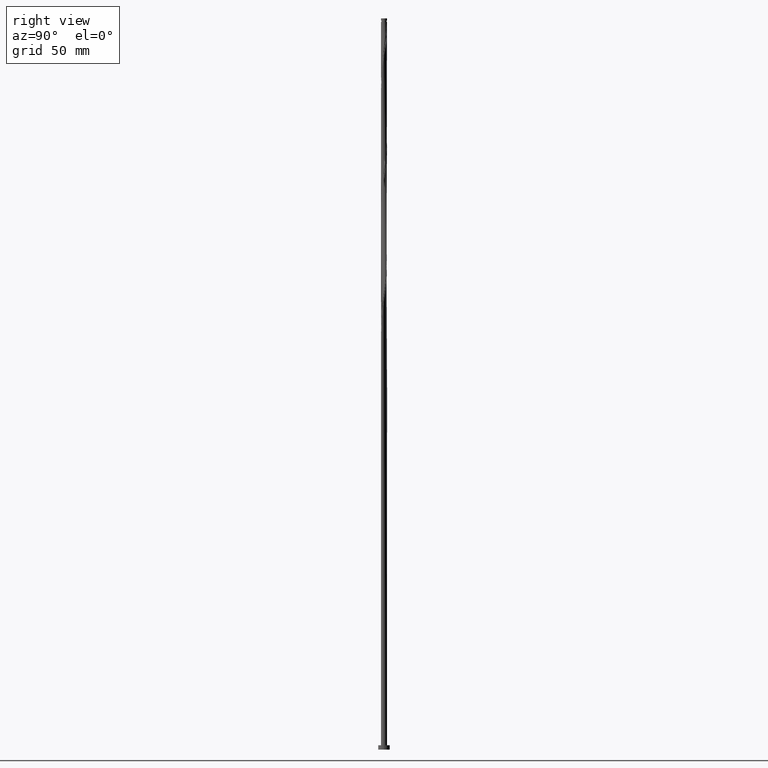
[diagram: clean part render]
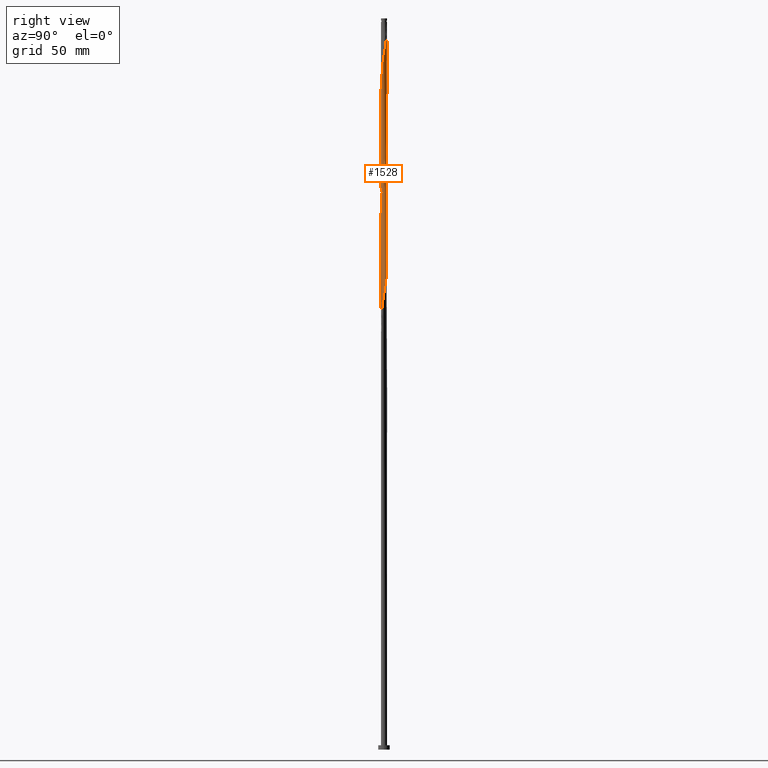
[diagram: same view with one face highlighted and labeled with its STEP entity id]
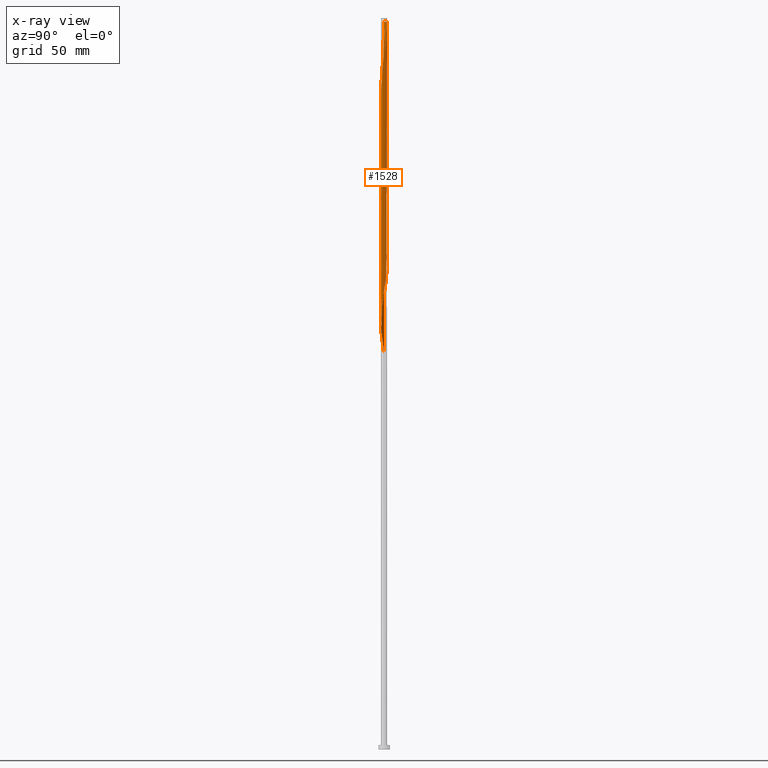
[diagram: x-ray of the same camera — body ghosted, the highlighted face saturated]
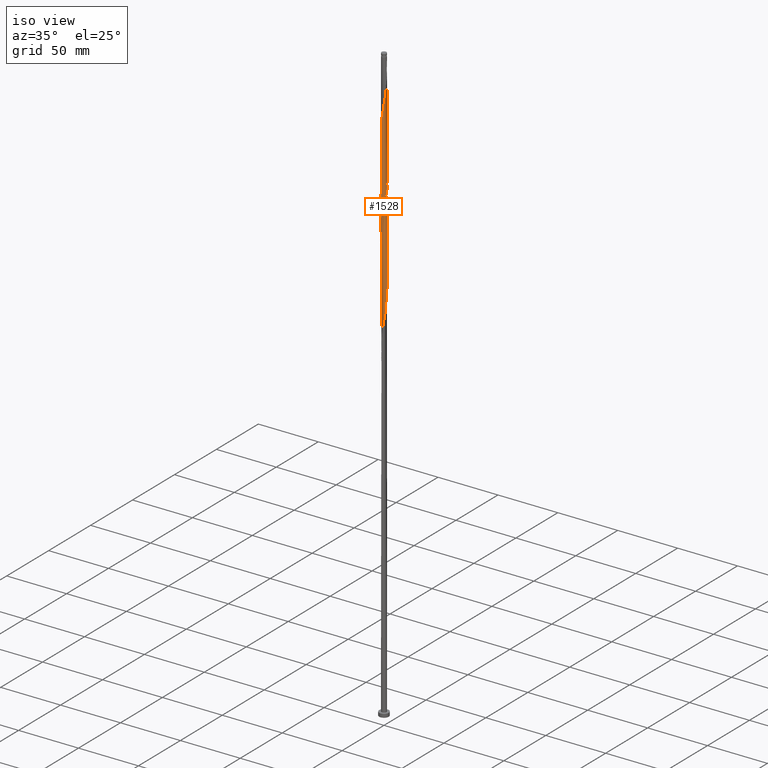
[diagram: same view with one face highlighted and labeled with its STEP entity id]
A machine part, right view. The second image highlights one B-rep face of the part: STEP entity #1528.
The next image is the same camera in x-ray: the body ghosted, the highlighted face saturated — about 0% of this face is hidden behind the body in this view.
A second angle (iso view) of the same face is appended — the face is thin or edge-on in the first view.
In plain terms, the highlighted cylindrical surface (bore or boss wall) has radius 2.1 mm, axis along (-0, -0, -1).
Its self-contained STEP definition (entity closure, byte-faithful):
#5 = CARTESIAN_POINT ( 'NONE',  ( 1.345162050318778002, -1.625828561903962965, 462.4445438297098008 ) ) ;
#12 = CARTESIAN_POINT ( 'NONE',  ( 0.7958967757520214459, 1.943334331078301336, 489.7882938297098008 ) ) ;
#17 =( BOUNDED_CURVE ( )  B_SPLINE_CURVE ( 2, ( #924, #286, #1958, #1357, #1648, #132, #1216, #740, #267, #914, #1486, #1509, #767, #1224, #1818, #455, #734, #569, #639, #1562, #1700, #171, #1234, #1540, #1384, #5, #189, #817, #1530, #942, #1827, #795, #180, #1260, #1848, #1393, #1416, #1082, #775, #620, #316, #1267, #1858, #663, #962, #785, #12, #630, #1103, #1113, #482, #1868, #150 ),
 .UNSPECIFIED., .F., .T. ) 
 B_SPLINE_CURVE_WITH_KNOTS ( ( 3, 2, 2, 2, 2, 2, 2, 2, 2, 2, 2, 2, 2, 2, 2, 2, 2, 2, 2, 2, 2, 2, 2, 2, 2, 2, 3 ),
 ( 0.5545286902180870392, 0.5546875000000000000, 0.5625000000000000000, 0.5703125000000000000, 0.5781250000000000000, 0.5859375000000000000, 0.5937500000000000000, 0.6015625000000000000, 0.6093750000000000000, 0.6171875000000000000, 0.6250000000000000000, 0.6328125000000000000, 0.6406250000000000000, 0.6484375000000000000, 0.6562500000000000000, 0.6640625000000000000, 0.6718750000000000000, 0.6796875000000000000, 0.6875000000000000000, 0.6953125000000000000, 0.7031250000000000000, 0.7109375000000000000, 0.7187500000000000000, 0.7265625000000000000, 0.7343750000000000000, 0.7421875000000000000, 0.7500000000000000000 ),
 .UNSPECIFIED. ) 
 CURVE ( )  GEOMETRIC_REPRESENTATION_ITEM ( )  RATIONAL_B_SPLINE_CURVE ( ( 0.9089165573360121764, 0.9090019243629170465, 0.9090909090910088697, 0.9047133878839146437, 0.9090909090910088697, 0.9047133878839146437, 0.9090909090910088697, 0.9047133878839146437, 0.9090909090910088697, 0.9047133878839146437, 0.9090909090910088697, 0.9047133878839146437, 0.9090909090910088697, 0.9047133878839146437, 0.9090909090910088697, 0.9047133878839146437, 0.9090909090910088697, 0.9047133878839146437, 0.9090909090910088697, 0.9047133878839146437, 0.9090909090910088697, 0.9047133878839146437, 0.9090909090910088697, 0.9047133878839146437, 0.9090909090910088697, 0.9047133878839146437, 0.9090909090910088697, 0.9047133878839146437, 0.9090909090910088697, 0.9047133878839146437, 0.9090909090910088697, 0.9047133878839146437, 0.9090909090910088697, 0.9047133878839146437, 0.9090909090910088697, 0.9047133878839146437, 0.9090909090910088697, 0.9047133878839146437, 0.9090909090910088697, 0.9047133878839146437, 0.9090909090910088697, 0.9047133878839146437, 0.9090909090910088697, 0.9047133878839146437, 0.9090909090910088697, 0.9047133878839146437, 0.9090909090910088697, 0.9047133878839146437, 0.9090909090910088697, 0.9047133878839146437, 0.9090909090910088697, 0.9047133878839146437, 0.9090909090910088697 ) ) 
 REPRESENTATION_ITEM ( '' )  );
#21 = EDGE_CURVE ( 'NONE', #486, #346, #380, .T. ) ;
#25 = CARTESIAN_POINT ( 'NONE',  ( 1.741422690719540256, -1.173646885671800089, 388.2257938297097439 ) ) ;
#32 = CARTESIAN_POINT ( 'NONE',  ( -0.7958967757520200026, 1.943334331078298449, 422.0799604963764295 ) ) ;
#38 = CIRCLE ( 'NONE', #1178, 2.099999999999951683 ) ;
#43 = CARTESIAN_POINT ( 'NONE',  ( -2.100000000000000089, 0.000000000000000000, 500.0000000000000000 ) ) ;
#44 = CARTESIAN_POINT ( 'NONE',  ( -0.6044950502919623769, 2.021723321449557353, 420.7778771630430015 ) ) ;
#45 = CARTESIAN_POINT ( 'NONE',  ( -2.100000000000000089, 0.004184572085943143345, 437.7313039198560318 ) ) ;
#47 = CARTESIAN_POINT ( 'NONE',  ( -0.2151994154757415068, -2.099159037781418657, 373.9028771630431152 ) ) ;
#48 = CARTESIAN_POINT ( 'NONE',  ( -2.100000000000000089, -1.136936264731537591E-15, 437.7576574743733318 ) ) ;
#60 = CARTESIAN_POINT ( 'NONE',  ( -2.099159037781418657, 0.2151994154757413402, 353.0695438297098008 ) ) ;
#69 = CARTESIAN_POINT ( 'NONE',  ( 2.061265465096912664, 0.4014781219429098269, 315.3091271630429446 ) ) ;
#80 = CARTESIAN_POINT ( 'NONE',  ( -1.478994593158975634, 1.490830303356661668, 343.9549604963764864 ) ) ;
#92 = CARTESIAN_POINT ( 'NONE',  ( -1.636498556394547554, -1.332160624413991190, 363.4862104963764864 ) ) ;
#101 = CARTESIAN_POINT ( 'NONE',  ( -1.936928890876850495, 0.8113608763593262996, 432.4966271630431720 ) ) ;
#111 = CARTESIAN_POINT ( 'NONE',  ( -2.099999999999951683, 0.000000000000000000, 497.6007938297097439 ) ) ;
#113 = ORIENTED_EDGE ( 'NONE', *, *, #1845, .F. ) ;
#132 = CARTESIAN_POINT ( 'NONE',  ( -2.016840962218582778, -0.6205900316938298689, 436.4028771630430583 ) ) ;
#138 = CARTESIAN_POINT ( 'NONE',  ( -1.943334331078298893, -0.7958967757520195585, 276.2466271630430015 ) ) ;
#150 = CARTESIAN_POINT ( 'NONE',  ( -0.4178947235848295971, 2.058000000000531848, 497.6007938297096871 ) ) ;
#161 = CARTESIAN_POINT ( 'NONE',  ( -0.008369110940942243310, -2.099983323262843538, 375.2049604963764295 ) ) ;
#171 = CARTESIAN_POINT ( 'NONE',  ( 0.6205900316938298689, -2.016840962218582778, 457.2362104963764295 ) ) ;
#180 = CARTESIAN_POINT ( 'NONE',  ( 2.061265465096916216, -0.4014781219429117143, 471.5591271630430015 ) ) ;
#189 = CARTESIAN_POINT ( 'NONE',  ( 1.490830303356663888, -1.478994593158978965, 463.7466271630430015 ) ) ;
#190 = CARTESIAN_POINT ( 'NONE',  ( 2.061265465096912664, 0.4014781219429098269, 398.6424604963764295 ) ) ;
#196 = DIRECTION ( 'NONE',  ( -0.000000000000000000, -0.000000000000000000, -1.000000000000000000 ) ) ;
#199 = CARTESIAN_POINT ( 'NONE',  ( -0.9872985012120777393, 1.864945340707039989, 340.0487104963764295 ) ) ;
#207 = EDGE_CURVE ( 'NONE', #693, #1140, #334, .T. ) ;
#209 = CARTESIAN_POINT ( 'NONE',  ( -0.4178947235847855213, -2.057999999999998941, 372.6007938297097439 ) ) ;
#219 = CARTESIAN_POINT ( 'NONE',  ( -2.061265465096912664, -0.4014781219429093828, 356.9757938297098008 ) ) ;
#220 = AXIS2_PLACEMENT_3D ( 'NONE', #611, #1043, #904 ) ;
#232 = CARTESIAN_POINT ( 'NONE',  ( -1.943334331078298893, -0.7958967757520195585, 359.5799604963763159 ) ) ;
#241 = CARTESIAN_POINT ( 'NONE',  ( 1.159729562813034409, -1.750721948550793883, 299.6841271630430583 ) ) ;
#248 = CARTESIAN_POINT ( 'NONE',  ( -2.100000000000003197, -1.192851162997014156E-15, 432.4439301850459856 ) ) ;
#267 = CARTESIAN_POINT ( 'NONE',  ( -1.741422690719544253, -1.173646885671800755, 440.3091271630431152 ) ) ;
#286 = CARTESIAN_POINT ( 'NONE',  ( -2.100000000000003197, -0.004184572085946943257, 432.4702837395633424 ) ) ;
#296 = CARTESIAN_POINT ( 'NONE',  ( 2.100000000000000089, -1.594972473022972487E-15, 396.0909908077067030 ) ) ;
#304 = CARTESIAN_POINT ( 'NONE',  ( 0.4014781219429092163, -2.061265465096913552, 377.8091271630430583 ) ) ;
#314 = EDGE_CURVE ( 'NONE', #486, #1408, #38, .T. ) ;
#316 = CARTESIAN_POINT ( 'NONE',  ( 1.741422690719543365, 1.173646885671801199, 481.9757938297098576 ) ) ;
#322 = CARTESIAN_POINT ( 'NONE',  ( 0.008369110940942453211, 2.099983323262843538, 416.8716271630428878 ) ) ;
#330 = ORIENTED_EDGE ( 'NONE', *, *, #314, .T. ) ;
#334 = LINE ( 'NONE', #1060, #1891 ) ;
#343 = EDGE_CURVE ( 'NONE', #346, #1140, #1929, .T. ) ;
#346 = VERTEX_POINT ( 'NONE', #48 ) ;
#360 = CARTESIAN_POINT ( 'NONE',  ( 2.099159037781418213, -0.2151994154757425060, 311.4028771630430015 ) ) ;
#361 = CARTESIAN_POINT ( 'NONE',  ( 0.8113608763593268547, 1.936928890876850051, 411.6632938297096871 ) ) ;
#372 = CARTESIAN_POINT ( 'NONE',  ( -1.857016819535121988, 1.002131721024822619, 347.8612104963763727 ) ) ;
#380 = LINE ( 'NONE', #43, #1641 ) ;
#384 = CARTESIAN_POINT ( 'NONE',  ( -0.1984611935938564720, 2.100807608744269306, 334.8403771630430583 ) ) ;
#393 = CARTESIAN_POINT ( 'NONE',  ( -1.741422690719540922, 1.173646885671799645, 429.8924604963763727 ) ) ;
#395 = CARTESIAN_POINT ( 'NONE',  ( 1.741422690719540256, -1.173646885671800089, 304.8924604963764295 ) ) ;
#431 = VERTEX_POINT ( 'NONE', #248 ) ;
#434 = CARTESIAN_POINT ( 'NONE',  ( -1.864945340707040433, -0.9872985012120774062, 277.5487104963763727 ) ) ;
#443 = CARTESIAN_POINT ( 'NONE',  ( -0.8113608763593267437, -1.936928890876850495, 286.6632938297097439 ) ) ;
#455 = CARTESIAN_POINT ( 'NONE',  ( -0.6044950502919640423, -2.021723321449560462, 449.4237104963765432 ) ) ;
#462 = CARTESIAN_POINT ( 'NONE',  ( 1.478994593158975634, -1.490830303356661002, 385.6216271630429446 ) ) ;
#471 = CARTESIAN_POINT ( 'NONE',  ( 2.016840962218579669, -0.6205900316938289807, 392.1320438297097439 ) ) ;
#482 = CARTESIAN_POINT ( 'NONE',  ( -0.008369110940941129617, 2.099983323262847090, 494.9966271630431152 ) ) ;
#486 = VERTEX_POINT ( 'NONE', #111 ) ;
#492 = CARTESIAN_POINT ( 'NONE',  ( 0.9872985012120771842, -1.864945340707039989, 381.7153771630430583 ) ) ;
#493 = CARTESIAN_POINT ( 'NONE',  ( 1.864945340707039989, 0.9872985012120780723, 402.5487104963764864 ) ) ;
#514 = CARTESIAN_POINT ( 'NONE',  ( 1.636498556394548221, 1.332160624413990302, 321.8195438297098008 ) ) ;
#525 = CARTESIAN_POINT ( 'NONE',  ( -1.750721948550793883, -1.159729562813034409, 362.1841271630430015 ) ) ;
#534 = CARTESIAN_POINT ( 'NONE',  ( -2.100000000000000089, -1.136936264731537591E-15, 437.7576574743733318 ) ) ;
#536 = CARTESIAN_POINT ( 'NONE',  ( -1.173646885671799645, -1.741422690719540922, 367.3924604963764295 ) ) ;
#547 = CARTESIAN_POINT ( 'NONE',  ( 1.936928890876850051, -0.8113608763593267437, 307.4966271630430583 ) ) ;
#556 = CARTESIAN_POINT ( 'NONE',  ( -1.741422690719540922, 1.173646885671799645, 346.5591271630430015 ) ) ;
#569 = CARTESIAN_POINT ( 'NONE',  ( -0.1984611935938573324, -2.100807608744272859, 452.0278771630431152 ) ) ;
#597 = CARTESIAN_POINT ( 'NONE',  ( -1.490830303356661002, -1.478994593158975857, 281.4549604963764295 ) ) ;
#611 = CARTESIAN_POINT ( 'NONE',  ( 0.000000000000000000, 0.000000000000000000, 500.0000000000000000 ) ) ;
#620 = CARTESIAN_POINT ( 'NONE',  ( 1.857016819535125318, 1.002131721024823507, 480.6737104963765432 ) ) ;
#630 = CARTESIAN_POINT ( 'NONE',  ( 0.6044950502919642643, 2.021723321449560462, 491.0903771630432288 ) ) ;
#631 = LINE ( 'NONE', #776, #1972 ) ;
#637 = CARTESIAN_POINT ( 'NONE',  ( -0.4014781219429094938, 2.061265465096913552, 419.4757938297096871 ) ) ;
#639 = CARTESIAN_POINT ( 'NONE',  ( 0.008369110940941396765, -2.099983323262847534, 453.3299604963764864 ) ) ;
#651 = CARTESIAN_POINT ( 'NONE',  ( 1.625828561903960079, -1.345162050318776226, 386.9237104963764864 ) ) ;
#663 = CARTESIAN_POINT ( 'NONE',  ( 1.332160624413993633, 1.636498556394550219, 485.8820438297098576 ) ) ;
#671 = DIRECTION ( 'NONE',  ( -0.000000000000000000, -0.000000000000000000, -1.000000000000000000 ) ) ;
#672 = CARTESIAN_POINT ( 'NONE',  ( -2.099983323262843538, 0.008369110940942560764, 437.7049604963764295 ) ) ;
#676 = CARTESIAN_POINT ( 'NONE',  ( 1.478994593158975634, -1.490830303356661002, 302.2882938297096871 ) ) ;
#688 = CARTESIAN_POINT ( 'NONE',  ( 0.6205900316938290917, 2.016840962218579225, 329.6320438297097439 ) ) ;
#693 = VERTEX_POINT ( 'NONE', #1149 ) ;
#700 = CARTESIAN_POINT ( 'NONE',  ( -0.6044950502919623769, 2.021723321449557353, 337.4445438297098008 ) ) ;
#710 = CARTESIAN_POINT ( 'NONE',  ( 1.490830303356661002, 1.478994593158975634, 323.1216271630430583 ) ) ;
#720 = CARTESIAN_POINT ( 'NONE',  ( -2.021723321449557353, -0.6044950502919628210, 358.2778771630430583 ) ) ;
#727 = CARTESIAN_POINT ( 'NONE',  ( -1.159729562813034631, 1.750721948550793883, 424.6841271630430015 ) ) ;
#734 = CARTESIAN_POINT ( 'NONE',  ( -0.4014781219429107151, -2.061265465096916216, 450.7257938297098008 ) ) ;
#740 = CARTESIAN_POINT ( 'NONE',  ( -1.857016819535125318, -1.002131721024823729, 439.0070438297098008 ) ) ;
#747 = CARTESIAN_POINT ( 'NONE',  ( -1.345162050318776226, -1.625828561903960079, 282.7570438297096871 ) ) ;
#756 = VERTEX_POINT ( 'NONE', #1460 ) ;
#757 = CARTESIAN_POINT ( 'NONE',  ( -1.750721948550793883, -1.159729562813034409, 278.8507938297096871 ) ) ;
#764 = ORIENTED_EDGE ( 'NONE', *, *, #207, .F. ) ;
#767 = CARTESIAN_POINT ( 'NONE',  ( -1.159729562813037074, -1.750721948550796103, 445.5174604963764864 ) ) ;
#775 = CARTESIAN_POINT ( 'NONE',  ( 1.936928890876853826, 0.8113608763593270767, 479.3716271630430583 ) ) ;
#776 = CARTESIAN_POINT ( 'NONE',  ( -2.100000000000000089, 0.000000000000000000, 500.0000000000000000 ) ) ;
#785 = CARTESIAN_POINT ( 'NONE',  ( 0.9872985012120809589, 1.864945340707042210, 488.4862104963764295 ) ) ;
#795 = CARTESIAN_POINT ( 'NONE',  ( 2.021723321449560462, -0.6044950502919640423, 470.2570438297098576 ) ) ;
#802 = CARTESIAN_POINT ( 'NONE',  ( 0.4178947235847858543, 2.057999999999998941, 414.2674604963764864 ) ) ;
#806 = CARTESIAN_POINT ( 'NONE',  ( 1.936928890876850051, -0.8113608763593267437, 390.8299604963763727 ) ) ;
#817 = CARTESIAN_POINT ( 'NONE',  ( 1.636498556394549331, -1.332160624413993855, 465.0487104963766001 ) ) ;
#818 = CARTESIAN_POINT ( 'NONE',  ( 2.100000000000000089, -1.594972473022972290E-15, 396.0909908077067030 ) ) ;
#826 = CARTESIAN_POINT ( 'NONE',  ( 2.016840962218579669, -0.6205900316938289807, 308.7987104963765432 ) ) ;
#836 = CARTESIAN_POINT ( 'NONE',  ( -1.864945340707040433, -0.9872985012120774062, 360.8820438297097439 ) ) ;
#847 = CARTESIAN_POINT ( 'NONE',  ( -0.4014781219429094938, 2.061265465096913552, 336.1424604963764295 ) ) ;
#848 = CARTESIAN_POINT ( 'NONE',  ( 1.943334331078298893, 0.7958967757520190034, 401.2466271630430583 ) ) ;
#857 = CARTESIAN_POINT ( 'NONE',  ( -2.057999999999998941, 0.4178947235847854658, 351.7674604963764864 ) ) ;
#866 = CARTESIAN_POINT ( 'NONE',  ( -1.625828561903960079, 1.345162050318776226, 428.5903771630431720 ) ) ;
#869 = CARTESIAN_POINT ( 'NONE',  ( -1.159729562813034631, 1.750721948550793883, 341.3507938297097439 ) ) ;
#904 = DIRECTION ( 'NONE',  ( -1.000000000000000000, 0.000000000000000000, 0.000000000000000000 ) ) ;
#910 = CARTESIAN_POINT ( 'NONE',  ( -0.6205900316938297578, -2.016840962218578781, 287.9653771630430583 ) ) ;
#914 = CARTESIAN_POINT ( 'NONE',  ( -1.625828561903962965, -1.345162050318778224, 441.6112104963764295 ) ) ;
#924 = CARTESIAN_POINT ( 'NONE',  ( -2.100000000000003197, -1.192851162997014156E-15, 432.4439301850459856 ) ) ;
#933 = CARTESIAN_POINT ( 'NONE',  ( 0.1984611935938559724, -2.100807608744269306, 376.5070438297097439 ) ) ;
#942 = CARTESIAN_POINT ( 'NONE',  ( 1.864945340707042210, -0.9872985012120809589, 467.6528771630431152 ) ) ;
#950 = CARTESIAN_POINT ( 'NONE',  ( 2.100000000000000089, -1.594972473022972290E-15, 396.0909908077067030 ) ) ;
#962 = CARTESIAN_POINT ( 'NONE',  ( 1.159729562813037074, 1.750721948550795881, 487.1841271630431152 ) ) ;
#970 = CARTESIAN_POINT ( 'NONE',  ( 1.002131721024822841, 1.857016819535121988, 327.0278771630432288 ) ) ;
#980 = CARTESIAN_POINT ( 'NONE',  ( 0.1984611935938559724, -2.100807608744269306, 293.1737104963764295 ) ) ;
#981 = CARTESIAN_POINT ( 'NONE',  ( 1.173646885671800533, 1.741422690719540256, 409.0591271630430015 ) ) ;
#991 = CARTESIAN_POINT ( 'NONE',  ( -1.345162050318776226, -1.625828561903960079, 366.0903771630430015 ) ) ;
#999 = CARTESIAN_POINT ( 'NONE',  ( 1.345162050318776448, 1.625828561903959857, 324.4237104963764295 ) ) ;
#1010 = CARTESIAN_POINT ( 'NONE',  ( 1.625828561903960079, -1.345162050318776226, 303.5903771630430583 ) ) ;
#1032 = CARTESIAN_POINT ( 'NONE',  ( -2.061265465096912664, -0.4014781219429093828, 273.6424604963764295 ) ) ;
#1043 = DIRECTION ( 'NONE',  ( -0.000000000000000000, -0.000000000000000000, -1.000000000000000000 ) ) ;
#1057 = CARTESIAN_POINT ( 'NONE',  ( -1.173646885671799645, -1.741422690719540922, 284.0591271630431152 ) ) ;
#1060 = CARTESIAN_POINT ( 'NONE',  ( 2.100000000000000089, 2.571758278209441464E-16, 500.0000000000000000 ) ) ;
#1082 = CARTESIAN_POINT ( 'NONE',  ( 2.016840962218583222, 0.6205900316938290917, 478.0695438297098008 ) ) ;
#1099 = CARTESIAN_POINT ( 'NONE',  ( -0.1984611935938564720, 2.100807608744269306, 418.1737104963764864 ) ) ;
#1100 = DIRECTION ( 'NONE',  ( -0.000000000000000000, -0.000000000000000000, -1.000000000000000000 ) ) ;
#1103 = CARTESIAN_POINT ( 'NONE',  ( 0.4014781219429118253, 2.061265465096916216, 492.3924604963764864 ) ) ;
#1113 = CARTESIAN_POINT ( 'NONE',  ( 0.1984611935938575267, 2.100807608744272859, 493.6945438297098008 ) ) ;
#1132 = CARTESIAN_POINT ( 'NONE',  ( -2.016840962218578781, 0.6205900316938295358, 350.4653771630430583 ) ) ;
#1140 = VERTEX_POINT ( 'NONE', #296 ) ;
#1142 = CARTESIAN_POINT ( 'NONE',  ( 1.943334331078298893, 0.7958967757520190034, 317.9132938297097439 ) ) ;
#1149 = CARTESIAN_POINT ( 'NONE',  ( 2.100000000000000089, 2.571758278209441464E-16, 497.6007938297097439 ) ) ;
#1155 = CARTESIAN_POINT ( 'NONE',  ( -2.099983323262843538, 0.008369110940942560764, 354.3716271630431152 ) ) ;
#1164 = CARTESIAN_POINT ( 'NONE',  ( -1.857016819535121988, 1.002131721024822619, 431.1945438297096871 ) ) ;
#1167 = CARTESIAN_POINT ( 'NONE',  ( 1.857016819535121988, -1.002131721024822841, 306.1945438297096302 ) ) ;
#1174 = CARTESIAN_POINT ( 'NONE',  ( -1.478994593158975634, 1.490830303356661668, 427.2882938297098008 ) ) ;
#1177 = CARTESIAN_POINT ( 'NONE',  ( 0.008369110940942453211, 2.099983323262843538, 333.5382938297096871 ) ) ;
#1178 = AXIS2_PLACEMENT_3D ( 'NONE', #1573, #196, #1444 ) ;
#1187 = CARTESIAN_POINT ( 'NONE',  ( -0.4178947235847855213, -2.057999999999998941, 289.2674604963764295 ) ) ;
#1195 = EDGE_CURVE ( 'NONE', #431, #756, #631, .T. ) ;
#1205 = CARTESIAN_POINT ( 'NONE',  ( -2.057999999999998941, 0.4178947235847854658, 435.1007938297096871 ) ) ;
#1216 = CARTESIAN_POINT ( 'NONE',  ( -1.936928890876853826, -0.8113608763593270767, 437.7049604963763727 ) ) ;
#1224 = CARTESIAN_POINT ( 'NONE',  ( -0.9872985012120798487, -1.864945340707043098, 446.8195438297097439 ) ) ;
#1234 = CARTESIAN_POINT ( 'NONE',  ( 0.8113608763593270767, -1.936928890876853826, 458.5382938297098008 ) ) ;
#1256 = ORIENTED_EDGE ( 'NONE', *, *, #1623, .F. ) ;
#1260 = CARTESIAN_POINT ( 'NONE',  ( 2.100807608744272859, -0.1984611935938574157, 472.8612104963763727 ) ) ;
#1265 = ORIENTED_EDGE ( 'NONE', *, *, #343, .F. ) ;
#1267 = CARTESIAN_POINT ( 'NONE',  ( 1.625828561903963410, 1.345162050318778002, 483.2778771630431152 ) ) ;
#1278 = CARTESIAN_POINT ( 'NONE',  ( 0.7958967757520195585, -1.943334331078298893, 297.0799604963763727 ) ) ;
#1290 = CARTESIAN_POINT ( 'NONE',  ( 1.173646885671800533, 1.741422690719540256, 325.7257938297097439 ) ) ;
#1301 = CARTESIAN_POINT ( 'NONE',  ( 2.099983323262843538, -0.008369110940942347393, 312.7049604963764864 ) ) ;
#1302 = CARTESIAN_POINT ( 'NONE',  ( 0.6205900316938290917, 2.016840962218579225, 412.9653771630430583 ) ) ;
#1313 = CARTESIAN_POINT ( 'NONE',  ( 1.864945340707039989, 0.9872985012120780723, 319.2153771630430015 ) ) ;
#1323 = CARTESIAN_POINT ( 'NONE',  ( -1.625828561903960079, 1.345162050318776226, 345.2570438297098008 ) ) ;
#1347 = CARTESIAN_POINT ( 'NONE',  ( -2.021723321449557353, -0.6044950502919628210, 274.9445438297098008 ) ) ;
#1353 = ORIENTED_EDGE ( 'NONE', *, *, #1195, .T. ) ;
#1355 = CARTESIAN_POINT ( 'NONE',  ( -1.002131721024822841, -1.857016819535121988, 285.3612104963763727 ) ) ;
#1357 = CARTESIAN_POINT ( 'NONE',  ( -2.099159037781422210, -0.2151994154757410904, 433.7987104963764295 ) ) ;
#1363 = CARTESIAN_POINT ( 'NONE',  ( -2.100000000000000089, 1.788810787009988624E-15, 271.0909908077065893 ) ) ;
#1376 = CARTESIAN_POINT ( 'NONE',  ( 2.099159037781418213, -0.2151994154757425060, 394.7362104963764295 ) ) ;
#1384 = CARTESIAN_POINT ( 'NONE',  ( 1.173646885671800755, -1.741422690719544253, 461.1424604963764295 ) ) ;
#1393 = CARTESIAN_POINT ( 'NONE',  ( 2.099159037781422210, 0.2151994154757417566, 475.4653771630431720 ) ) ;
#1394 = CARTESIAN_POINT ( 'NONE',  ( -0.4178947235848295971, 2.058000000000531848, 497.6007938297096871 ) ) ;
#1404 = CARTESIAN_POINT ( 'NONE',  ( 1.857016819535121988, -1.002131721024822841, 389.5278771630431152 ) ) ;
#1408 = VERTEX_POINT ( 'NONE', #1394 ) ;
#1412 = EDGE_LOOP ( 'NONE', ( #1832, #330, #1256, #1353, #113, #764, #1920, #1265 ) ) ;
#1416 = CARTESIAN_POINT ( 'NONE',  ( 2.058000000000002494, 0.4178947235847854103, 476.7674604963763727 ) ) ;
#1417 = CARTESIAN_POINT ( 'NONE',  ( 1.636498556394548221, 1.332160624413990302, 405.1528771630431152 ) ) ;
#1425 = CARTESIAN_POINT ( 'NONE',  ( 0.9872985012120771842, -1.864945340707039989, 298.3820438297098576 ) ) ;
#1426 = CARTESIAN_POINT ( 'NONE',  ( 1.345162050318776448, 1.625828561903959857, 407.7570438297097439 ) ) ;
#1434 = CARTESIAN_POINT ( 'NONE',  ( -2.100807608744269306, -0.1984611935938561111, 355.6737104963764295 ) ) ;
#1435 = CARTESIAN_POINT ( 'NONE',  ( 1.490830303356661002, 1.478994593158975634, 406.4549604963763727 ) ) ;
#1444 = DIRECTION ( 'NONE',  ( -1.000000000000000000, 0.000000000000000000, 0.000000000000000000 ) ) ;
#1446 = CARTESIAN_POINT ( 'NONE',  ( 1.750721948550793883, 1.159729562813034187, 320.5174604963764295 ) ) ;
#1456 = CARTESIAN_POINT ( 'NONE',  ( -0.6205900316938297578, -2.016840962218578781, 371.2987104963763727 ) ) ;
#1460 = CARTESIAN_POINT ( 'NONE',  ( -2.100000000000000089, 1.788810787009988624E-15, 271.0909908077065893 ) ) ;
#1465 = CARTESIAN_POINT ( 'NONE',  ( -1.936928890876850495, 0.8113608763593262996, 349.1632938297098008 ) ) ;
#1482 = CARTESIAN_POINT ( 'NONE',  ( -0.9872985012120777393, 1.864945340707039989, 423.3820438297097439 ) ) ;
#1486 = CARTESIAN_POINT ( 'NONE',  ( -1.478994593158978743, -1.490830303356663666, 442.9132938297098576 ) ) ;
#1509 = CARTESIAN_POINT ( 'NONE',  ( -1.332160624413993855, -1.636498556394549553, 444.2153771630430015 ) ) ;
#1518 = CARTESIAN_POINT ( 'NONE',  ( 2.099983323262843538, -0.008369110940942347393, 396.0382938297097439 ) ) ;
#1519 = DIRECTION ( 'NONE',  ( -0.000000000000000000, -0.000000000000000000, -1.000000000000000000 ) ) ;
#1528 = ADVANCED_FACE ( 'NONE', ( #1655 ), #1933, .T. ) ;
#1530 = CARTESIAN_POINT ( 'NONE',  ( 1.750721948550796103, -1.159729562813037074, 466.3507938297096871 ) ) ;
#1540 = CARTESIAN_POINT ( 'NONE',  ( 1.002131721024823729, -1.857016819535125318, 459.8403771630431720 ) ) ;
#1547 = CARTESIAN_POINT ( 'NONE',  ( 0.2151994154757414790, 2.099159037781418657, 415.5695438297097439 ) ) ;
#1550 = CARTESIAN_POINT ( 'NONE',  ( 2.099999999999999645, -0.004184572085944403622, 396.0646372531893462 ) ) ;
#1562 = CARTESIAN_POINT ( 'NONE',  ( 0.2151994154757409794, -2.099159037781422210, 454.6320438297098008 ) ) ;
#1564 = CARTESIAN_POINT ( 'NONE',  ( 2.021723321449557353, 0.6044950502919623769, 399.9445438297098008 ) ) ;
#1573 = CARTESIAN_POINT ( 'NONE',  ( 0.000000000000000000, 0.000000000000000000, 497.6007938297097439 ) ) ;
#1576 = CARTESIAN_POINT ( 'NONE',  ( 2.100807608744269306, 0.1984611935938558613, 314.0070438297096871 ) ) ;
#1577 = CARTESIAN_POINT ( 'NONE',  ( 1.002131721024822841, 1.857016819535121988, 410.3612104963764864 ) ) ;
#1585 = CARTESIAN_POINT ( 'NONE',  ( -0.008369110940942243310, -2.099983323262843538, 291.8716271630430583 ) ) ;
#1590 =( BOUNDED_CURVE ( )  B_SPLINE_CURVE ( 2, ( #950, #1550, #1518, #1376, #1979, #471, #806, #1404, #25, #651, #462, #1837, #1691, #492, #1709, #1679, #304, #933, #161, #47, #209, #1456, #1922, #1901, #536, #991, #1742, #92, #525, #836, #232, #720, #219, #1434, #1155, #60, #857, #1132, #1465, #372, #556, #1323, #80, #1607, #869, #199, #1752, #700, #847, #384, #1177, #1763, #1773, #688, #1912, #970, #1290, #999, #710, #514, #1446, #1313, #1142, #1597, #69, #1576, #1301, #360, #1889, #826, #547, #1167, #395, #1010, #676, #1616, #241, #1425, #1278, #1879, #1731, #980, #1585, #1956, #1187, #910, #443, #1355, #1057, #747, #597, #1645, #757, #434, #138, #1347, #1032, #1965, #1363 ),
 .UNSPECIFIED., .F., .T. ) 
 B_SPLINE_CURVE_WITH_KNOTS ( ( 3, 2, 2, 2, 2, 2, 2, 2, 2, 2, 2, 2, 2, 2, 2, 2, 2, 2, 2, 2, 2, 2, 2, 2, 2, 2, 2, 2, 2, 2, 2, 2, 2, 2, 2, 2, 2, 2, 2, 2, 2, 2, 2, 2, 2, 2, 2, 2, 2, 3 ),
 ( 0.5545286902180869282, 0.5546875000000000000, 0.5625000000000000000, 0.5703125000000000000, 0.5781250000000000000, 0.5859375000000000000, 0.5937500000000000000, 0.6015625000000000000, 0.6093750000000000000, 0.6171875000000000000, 0.6250000000000000000, 0.6328125000000000000, 0.6406250000000000000, 0.6484375000000000000, 0.6562500000000000000, 0.6640625000000000000, 0.6718750000000000000, 0.6796875000000000000, 0.6875000000000000000, 0.6953125000000000000, 0.7031250000000000000, 0.7109375000000000000, 0.7187500000000000000, 0.7265625000000000000, 0.7343750000000000000, 0.7421875000000000000, 0.7500000000000000000, 0.7578125000000000000, 0.7656250000000000000, 0.7734375000000000000, 0.7812500000000000000, 0.7890625000000000000, 0.7968750000000000000, 0.8046875000000000000, 0.8125000000000000000, 0.8203125000000000000, 0.8281250000000000000, 0.8359375000000000000, 0.8437500000000000000, 0.8515625000000000000, 0.8593750000000000000, 0.8671875000000000000, 0.8750000000000000000, 0.8828125000000000000, 0.8906250000000000000, 0.8984375000000000000, 0.9062500000000000000, 0.9140625000000000000, 0.9218750000000000000, 0.9295286902180870392 ),
 .UNSPECIFIED. ) 
 CURVE ( )  GEOMETRIC_REPRESENTATION_ITEM ( )  RATIONAL_B_SPLINE_CURVE ( ( 0.9089165573360052930, 0.9090019243629102741, 0.9090909090910022083, 0.9047133878839080934, 0.9090909090910022083, 0.9047133878839080934, 0.9090909090910022083, 0.9047133878839080934, 0.9090909090910022083, 0.9047133878839080934, 0.9090909090910022083, 0.9047133878839080934, 0.9090909090910022083, 0.9047133878839080934, 0.9090909090910022083, 0.9047133878839080934, 0.9090909090910022083, 0.9047133878839080934, 0.9090909090910022083, 0.9047133878839080934, 0.9090909090910022083, 0.9047133878839080934, 0.9090909090910022083, 0.9047133878839080934, 0.9090909090910022083, 0.9047133878839080934, 0.9090909090910022083, 0.9047133878839080934, 0.9090909090910022083, 0.9047133878839080934, 0.9090909090910022083, 0.9047133878839080934, 0.9090909090910022083, 0.9047133878839080934, 0.9090909090910022083, 0.9047133878839080934, 0.9090909090910022083, 0.9047133878839080934, 0.9090909090910022083, 0.9047133878839080934, 0.9090909090910022083, 0.9047133878839080934, 0.9090909090910022083, 0.9047133878839080934, 0.9090909090910022083, 0.9047133878839080934, 0.9090909090910022083, 0.9047133878839080934, 0.9090909090910022083, 0.9047133878839080934, 0.9090909090910022083, 0.9047133878839080934, 0.9090909090910022083, 0.9047133878839080934, 0.9090909090910022083, 0.9047133878839080934, 0.9090909090910022083, 0.9047133878839080934, 0.9090909090910022083, 0.9047133878839080934, 0.9090909090910022083, 0.9047133878839080934, 0.9090909090910022083, 0.9047133878839080934, 0.9090909090910022083, 0.9047133878839080934, 0.9090909090910022083, 0.9047133878839080934, 0.9090909090910022083, 0.9047133878839080934, 0.9090909090910022083, 0.9047133878839080934, 0.9090909090910022083, 0.9047133878839080934, 0.9090909090910022083, 0.9047133878839080934, 0.9090909090910022083, 0.9047133878839080934, 0.9090909090910022083, 0.9047133878839080934, 0.9090909090910022083, 0.9047133878839080934, 0.9090909090910022083, 0.9047133878839080934, 0.9090909090910022083, 0.9047133878839080934, 0.9090909090910022083, 0.9047133878839080934, 0.9090909090910022083, 0.9047133878839080934, 0.9090909090910022083, 0.9047133878839080934, 0.9090909090910022083, 0.9047133878839080934, 0.9090909090910022083, 0.9047133878839080934, 0.9090909090910022083, 0.9048023726120000276, 0.9089165573360054040 ) ) 
 REPRESENTATION_ITEM ( '' )  );
#1597 = CARTESIAN_POINT ( 'NONE',  ( 2.021723321449557353, 0.6044950502919623769, 316.6112104963763727 ) ) ;
#1607 = CARTESIAN_POINT ( 'NONE',  ( -1.332160624413991190, 1.636498556394547554, 342.6528771630430583 ) ) ;
#1616 = CARTESIAN_POINT ( 'NONE',  ( 1.332160624413990746, -1.636498556394548221, 300.9862104963763159 ) ) ;
#1623 = EDGE_CURVE ( 'NONE', #431, #1408, #17, .T. ) ;
#1641 = VECTOR ( 'NONE', #671, 1000.000000000000000 ) ;
#1642 = CARTESIAN_POINT ( 'NONE',  ( -2.099159037781418657, 0.2151994154757413402, 436.4028771630430015 ) ) ;
#1645 = CARTESIAN_POINT ( 'NONE',  ( -1.636498556394547554, -1.332160624413991190, 280.1528771630430583 ) ) ;
#1648 = CARTESIAN_POINT ( 'NONE',  ( -2.058000000000002494, -0.4178947235847855768, 435.1007938297097439 ) ) ;
#1655 = FACE_OUTER_BOUND ( 'NONE', #1412, .T. ) ;
#1679 = CARTESIAN_POINT ( 'NONE',  ( 0.6044950502919623769, -2.021723321449557353, 379.1112104963764295 ) ) ;
#1691 = CARTESIAN_POINT ( 'NONE',  ( 1.159729562813034409, -1.750721948550793883, 383.0174604963764295 ) ) ;
#1700 = CARTESIAN_POINT ( 'NONE',  ( 0.4178947235847855213, -2.058000000000002494, 455.9341271630430583 ) ) ;
#1709 = CARTESIAN_POINT ( 'NONE',  ( 0.7958967757520195585, -1.943334331078298893, 380.4132938297096302 ) ) ;
#1710 = CARTESIAN_POINT ( 'NONE',  ( 2.099999999999999645, 0.2026076113508639975, 397.3669709131226000 ) ) ;
#1731 = CARTESIAN_POINT ( 'NONE',  ( 0.4014781219429092163, -2.061265465096913552, 294.4757938297098576 ) ) ;
#1742 = CARTESIAN_POINT ( 'NONE',  ( -1.490830303356661002, -1.478994593158975857, 364.7882938297096302 ) ) ;
#1752 = CARTESIAN_POINT ( 'NONE',  ( -0.7958967757520200026, 1.943334331078298449, 338.7466271630430583 ) ) ;
#1763 = CARTESIAN_POINT ( 'NONE',  ( 0.2151994154757414790, 2.099159037781418657, 332.2362104963764295 ) ) ;
#1770 = CARTESIAN_POINT ( 'NONE',  ( -1.332160624413991190, 1.636498556394547554, 425.9862104963764864 ) ) ;
#1773 = CARTESIAN_POINT ( 'NONE',  ( 0.4178947235847858543, 2.057999999999998941, 330.9341271630431152 ) ) ;
#1799 = CARTESIAN_POINT ( 'NONE',  ( -2.016840962218578781, 0.6205900316938295358, 433.7987104963764295 ) ) ;
#1818 = CARTESIAN_POINT ( 'NONE',  ( -0.7958967757520214459, -1.943334331078302002, 448.1216271630431152 ) ) ;
#1827 = CARTESIAN_POINT ( 'NONE',  ( 1.943334331078301336, -0.7958967757520214459, 468.9549604963764864 ) ) ;
#1832 = ORIENTED_EDGE ( 'NONE', *, *, #21, .F. ) ;
#1837 = CARTESIAN_POINT ( 'NONE',  ( 1.332160624413990746, -1.636498556394548221, 384.3195438297096871 ) ) ;
#1845 = EDGE_CURVE ( 'NONE', #1140, #756, #1590, .T. ) ;
#1848 = CARTESIAN_POINT ( 'NONE',  ( 2.099983323262847090, 0.008369110940941233701, 474.1632938297097439 ) ) ;
#1858 = CARTESIAN_POINT ( 'NONE',  ( 1.478994593158978965, 1.490830303356663222, 484.5799604963764295 ) ) ;
#1859 = CARTESIAN_POINT ( 'NONE',  ( 1.750721948550793883, 1.159729562813034187, 403.8507938297097439 ) ) ;
#1868 = CARTESIAN_POINT ( 'NONE',  ( -0.2151994154757416733, 2.099159037781422654, 496.2987104963766569 ) ) ;
#1879 = CARTESIAN_POINT ( 'NONE',  ( 0.6044950502919623769, -2.021723321449557353, 295.7778771630430583 ) ) ;
#1889 = CARTESIAN_POINT ( 'NONE',  ( 2.057999999999998941, -0.4178947235847855768, 310.1007938297097439 ) ) ;
#1891 = VECTOR ( 'NONE', #1100, 1000.000000000000000 ) ;
#1901 = CARTESIAN_POINT ( 'NONE',  ( -1.002131721024822841, -1.857016819535121988, 368.6945438297098008 ) ) ;
#1912 = CARTESIAN_POINT ( 'NONE',  ( 0.8113608763593268547, 1.936928890876850051, 328.3299604963763159 ) ) ;
#1920 = ORIENTED_EDGE ( 'NONE', *, *, #207, .T. ) ;
#1922 = CARTESIAN_POINT ( 'NONE',  ( -0.8113608763593267437, -1.936928890876850495, 369.9966271630430015 ) ) ;
#1929 =( BOUNDED_CURVE ( )  B_SPLINE_CURVE ( 2, ( #534, #45, #672, #1642, #1205, #1799, #101, #1164, #393, #866, #1174, #1770, #727, #1482, #32, #44, #637, #1099, #322, #1547, #802, #1302, #361, #1577, #981, #1426, #1435, #1417, #1859, #493, #848, #1564, #190, #1710, #818 ),
 .UNSPECIFIED., .F., .T. ) 
 B_SPLINE_CURVE_WITH_KNOTS ( ( 3, 2, 2, 2, 2, 2, 2, 2, 2, 2, 2, 2, 2, 2, 2, 2, 2, 3 ),
 ( 0.4295286902180868727, 0.4296875000000000000, 0.4375000000000000000, 0.4453125000000000000, 0.4531250000000000000, 0.4609375000000000000, 0.4687500000000000000, 0.4765625000000000000, 0.4843750000000000000, 0.4921875000000000000, 0.5000000000000000000, 0.5078125000000000000, 0.5156250000000000000, 0.5234375000000000000, 0.5312500000000000000, 0.5390625000000000000, 0.5468750000000000000, 0.5545286902180869282 ),
 .UNSPECIFIED. ) 
 CURVE ( )  GEOMETRIC_REPRESENTATION_ITEM ( )  RATIONAL_B_SPLINE_CURVE ( ( 0.9089165573360051820, 0.9090019243629101631, 0.9090909090910022083, 0.9047133878839080934, 0.9090909090910022083, 0.9047133878839080934, 0.9090909090910022083, 0.9047133878839080934, 0.9090909090910022083, 0.9047133878839080934, 0.9090909090910022083, 0.9047133878839080934, 0.9090909090910022083, 0.9047133878839080934, 0.9090909090910022083, 0.9047133878839080934, 0.9090909090910022083, 0.9047133878839080934, 0.9090909090910022083, 0.9047133878839080934, 0.9090909090910022083, 0.9047133878839080934, 0.9090909090910022083, 0.9047133878839080934, 0.9090909090910022083, 0.9047133878839080934, 0.9090909090910022083, 0.9047133878839080934, 0.9090909090910022083, 0.9047133878839080934, 0.9090909090910022083, 0.9047133878839080934, 0.9090909090910022083, 0.9048023726120000276, 0.9089165573360052930 ) ) 
 REPRESENTATION_ITEM ( '' )  );
#1933 = CYLINDRICAL_SURFACE ( 'NONE', #220, 2.100000000000000089 ) ;
#1956 = CARTESIAN_POINT ( 'NONE',  ( -0.2151994154757415068, -2.099159037781418657, 290.5695438297097439 ) ) ;
#1958 = CARTESIAN_POINT ( 'NONE',  ( -2.099983323262847534, -0.008369110940941979632, 432.4966271630430015 ) ) ;
#1965 = CARTESIAN_POINT ( 'NONE',  ( -2.099999999999999645, -0.2026076113508612775, 272.3669709131226000 ) ) ;
#1972 = VECTOR ( 'NONE', #1519, 1000.000000000000000 ) ;
#1979 = CARTESIAN_POINT ( 'NONE',  ( 2.057999999999998941, -0.4178947235847855768, 393.4341271630430583 ) ) ;